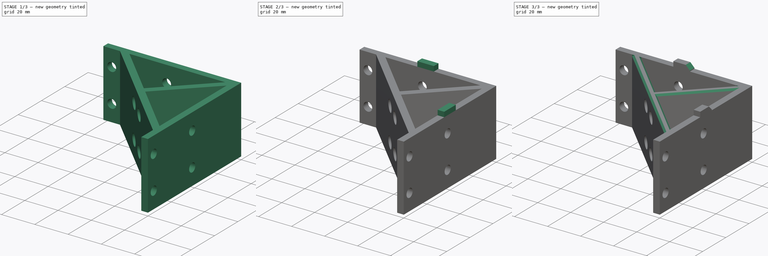
[diagram: build sequence overview — one tinted view per stage of 3, left to right]
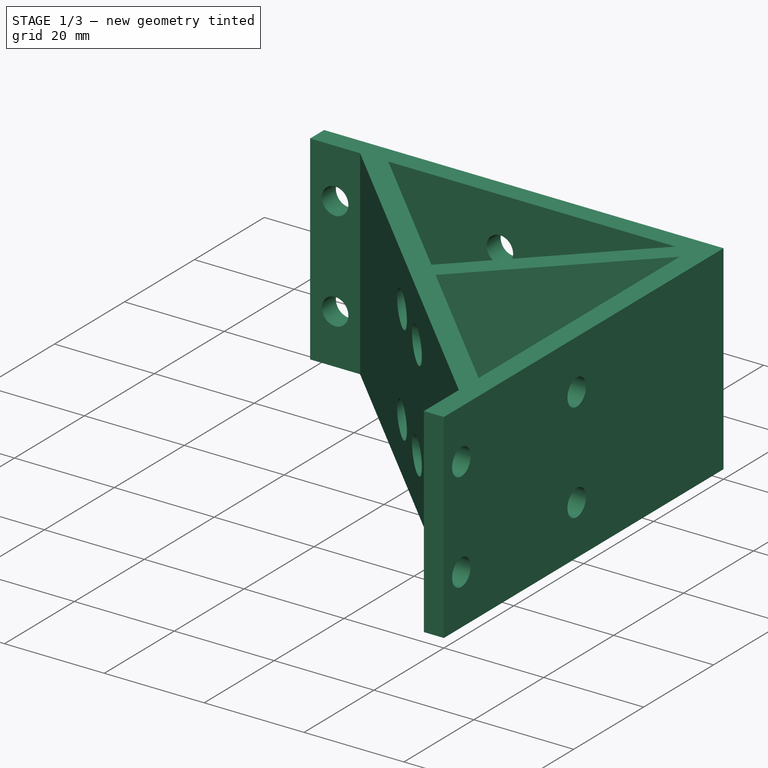
[diagram: stage 1 of 3 — iso view after this stage's code; geometry added in this stage tinted green]
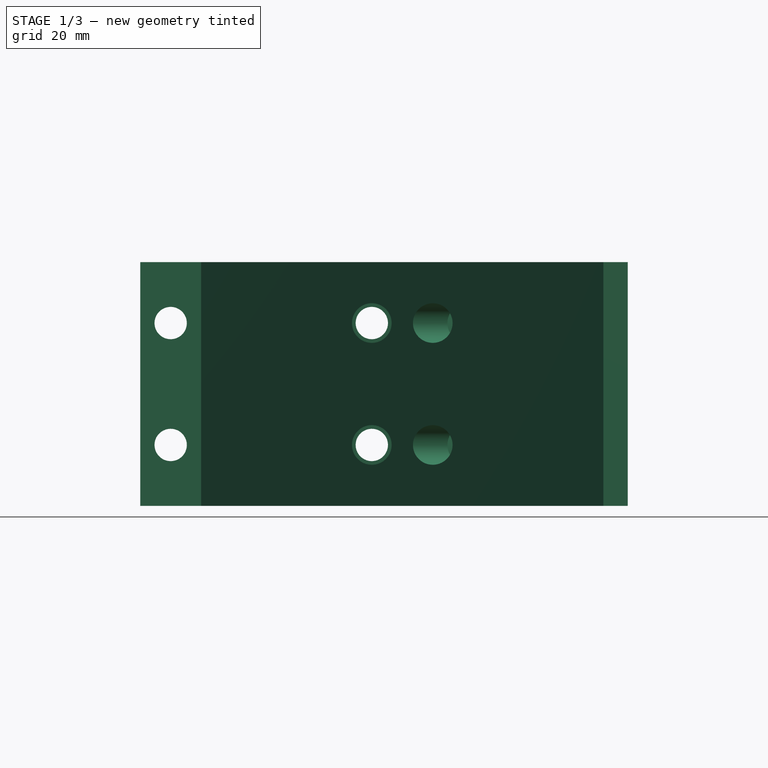
[diagram: stage 1 of 3 — front view after this stage's code; geometry added in this stage tinted green]
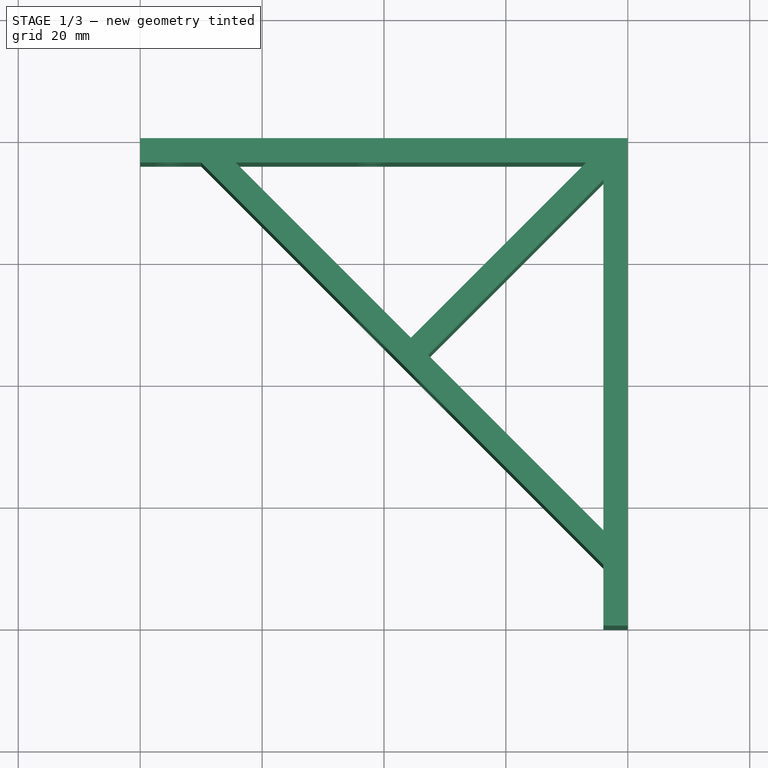
[diagram: stage 1 of 3 — top view after this stage's code; geometry added in this stage tinted green]
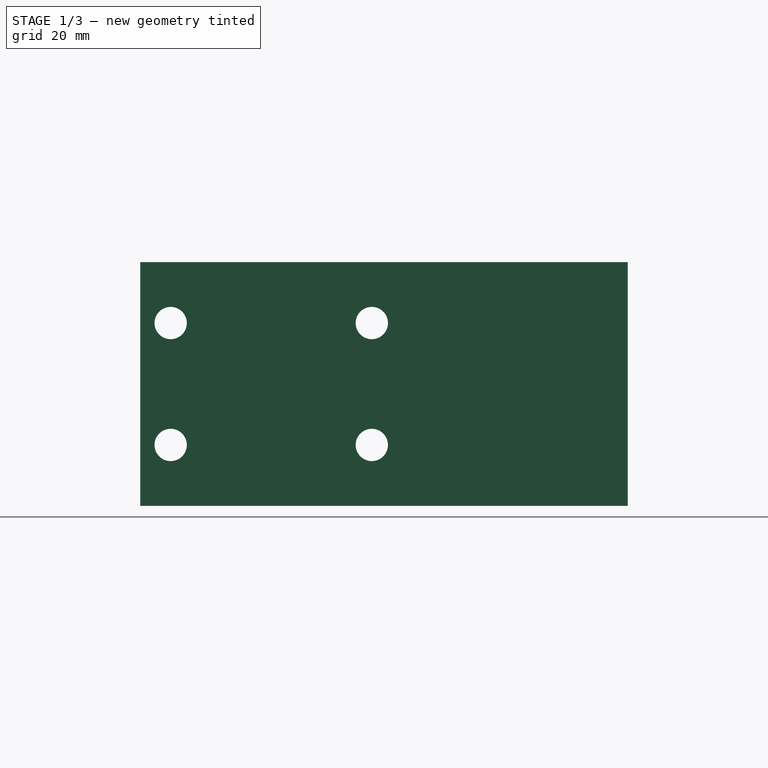
[diagram: stage 1 of 3 — right view after this stage's code; geometry added in this stage tinted green]
FCSTD DOCUMENT  (FreeCAD 0.19R24291 (Git))
Label: FDM-9001_squaring-bracket
License: All rights reserved
LicenseURL: http://en.wikipedia.org/wiki/All_rights_reserved
objects: Sketcher::SketchObject×5, PartDesign::Plane×4, PartDesign::Pad×3, PartDesign::Hole×2, PartDesign::Chamfer×2, Part::Part2DObjectPython×1, PartDesign::Pocket×1, PartDesign::Body×1
note: 27 computed .brp shape members not serialized (recipe doc carries the construction recipe); baked Part::Feature solids carry a one-line shape summary decoded from their .brp

FEATURE [Sketcher::SketchObject] Sketch  label="BaseShape"
  FullyConstrained = true
  MapMode = 5
  Support = -> [XY_Plane]
  sketch-geometry (16):
    g0: LineSegment StartX=-80 StartY=0 StartZ=0 EndX=-70 EndY=0 EndZ=0
    g1: LineSegment StartX=-4 StartY=-70 StartZ=0 EndX=-70 EndY=-4 EndZ=0
    g2: LineSegment StartX=-70 StartY=-4 StartZ=0 EndX=-80 EndY=-4 EndZ=0
    g3: LineSegment StartX=-80 StartY=0 StartZ=0 EndX=-80 EndY=-4 EndZ=0
    g4: LineSegment StartX=-4 StartY=-70 StartZ=0 EndX=-4 EndY=-80 EndZ=0
    g5: LineSegment StartX=-4 StartY=-80 StartZ=0 EndX=0 EndY=-80 EndZ=0
    g6: LineSegment StartX=0 StartY=-80 StartZ=0 EndX=0 EndY=-70 EndZ=0
    g7: LineSegment StartX=-70 StartY=0 StartZ=0 EndX=0 EndY=0 EndZ=0
    g8: LineSegment StartX=0 StartY=-70 StartZ=0 EndX=0 EndY=0 EndZ=0
    g9: LineSegment StartX=-64.3431 StartY=-4 StartZ=0 EndX=-6.82843 EndY=-4 EndZ=0
    g10: LineSegment StartX=-6.82843 StartY=-4 StartZ=0 EndX=-35.5858 EndY=-32.7574 EndZ=0
    g11: LineSegment StartX=-35.5858 StartY=-32.7574 StartZ=0 EndX=-64.3431 EndY=-4 EndZ=0
    g12: LineSegment StartX=-4 StartY=-6.82843 StartZ=0 EndX=-32.7574 EndY=-35.5858 EndZ=0
    g13: LineSegment StartX=-32.7574 StartY=-35.5858 StartZ=0 EndX=-4 EndY=-64.3431 EndZ=0
    g14: LineSegment StartX=-4 StartY=-64.3431 StartZ=0 EndX=-4 EndY=-6.82843 EndZ=0
    g15: LineSegment StartX=0 StartY=0 StartZ=0 EndX=-37 EndY=-37 EndZ=0
  constraints (46):
    c: Horizontal(g0)
    c: Coincident(g2,g1)
    c: Horizontal(g2)
    c: Coincident(g3,g0)
    c: Coincident(g3,g2)
    c: Vertical(g3)
    c: Vertical(g1,g0)
    c: DistanceX(g2,g2) = 10
    c: Coincident(g4,g1)
    c: Vertical(g4)
    c: Coincident(g5,g4)
    c: Coincident(g6,g5)
    c: Vertical(g6)
    c: Horizontal(g5)
    c: DistanceX(g5,g5) = 4
    c: Equal(g5,g3)
    c: Equal(g4,g2)
    c: Angle(g1,g4) = 2.35619
    c: Coincident(g7,g0)
    c: Horizontal(g7)
    c: Coincident(g8,g6)
    c: Vertical(g8)
    c: Coincident(g8,g7)
    c: DistanceX(g0,g7) = 80
    c: Horizontal(g9)
    c: Coincident(g10,g9)
    c: Coincident(g11,g10)
    c: Coincident(g11,g9)
    c: Coincident(g13,g12)
    c: Coincident(g14,g13)
    c: Coincident(g14,g12)
    c: Vertical(g14)
    c: Parallel(g1,g13)
    c: Parallel(g1,g11)
    c: Perpendicular(g13,g12)
    c: Perpendicular(g10,g11)
    c: Distance(g9,g12) = 4
    c: Distance(g10,g1) = 4
    c: Distance(g12,g1) = 4
    c: Horizontal(g1,g6)
    c: Horizontal(g1,g9)
    c: Equal(g14,g9)
    c: Coincident(g7,g-1)
    c: Coincident(g15,g7)
    c: PointOnObject(g15,g1)
    c: Symmetric(g10,g12,g15)
FEATURE [PartDesign::Pad] Pad
  Direction = (1,1,1)
  Length = 40
  Length2 = 100
  Profile = -> Sketch
  Type = 0
FEATURE [PartDesign::Plane] DatumPlane
  AttachmentOffset = pos=(0,0,40) rot=(0,0,1;0rad)
  Length = 121.9
  MapMode = 5
  Placement = pos=(0,-44,8.9e-15) rot=(1,0,0;1.5708rad)
  ResizeMode = 0
  Support = -> [Pad]
  Width = 84.8997
FEATURE [Sketcher::SketchObject] Sketch001  label="M5Holes1"
  FullyConstrained = true
  MapMode = 5
  Placement = pos=(0,-44,8.9e-15) rot=(1,0,0;1.5708rad)
  Support = -> [DatumPlane]
  sketch-geometry (4):
    g0: Circle CenterX=-75 CenterY=10 CenterZ=0 NormalX=0 NormalY=0 NormalZ=1 AngleXU=0 Radius=3
    g1: Circle CenterX=-42 CenterY=10 CenterZ=0 NormalX=0 NormalY=0 NormalZ=1 AngleXU=0 Radius=3
    g2: Circle CenterX=-75 CenterY=30 CenterZ=0 NormalX=0 NormalY=0 NormalZ=1 AngleXU=0 Radius=3
    g3: Circle CenterX=-42 CenterY=30 CenterZ=0 NormalX=0 NormalY=0 NormalZ=1 AngleXU=0 Radius=3
  constraints (12):
    c: Horizontal(g0,g1)
    c: Radius(g1) = 3
    c: Equal(g0,g1)
    c: DistanceY(g-1,g1) = 10
    c: DistanceX(g1,g-1) = 42
    c: Vertical(g2,g0)
    c: Vertical(g3,g1)
    c: Horizontal(g2,g3)
    c: DistanceY(g-1,g3) = 30
    c: Equal(g3,g2)
    c: Equal(g2,g1)
    c: DistanceX(g0,g-1) = 75
FEATURE [PartDesign::Hole] Hole
  BaseFeature = -> Pad
  Depth = 45
  DepthType = 1
  Diameter = 5.3
  DrillForDepth = false
  DrillPoint = 1
  DrillPointAngle = 118
  HoleCutCountersinkAngle = 90
  HoleCutCustomValues = false
  HoleCutDepth = 30
  HoleCutDiameter = 6.5
  HoleCutType = 1
  ModelActualThread = false
  Profile = -> Sketch001
  Tapered = false
  TaperedAngle = 90
  ThreadAngle = 0
  ThreadClass = 0
  ThreadCutOffInner = 0
  ThreadCutOffOuter = 0
  ThreadDirection = 0
  ThreadFit = 1
  ThreadPitch = 0
  ThreadSize = 13
  ThreadType = 1
  Threaded = false
FEATURE [PartDesign::Plane] DatumPlane001
  AttachmentOffset = pos=(0,0,40) rot=(0,0,1;0rad)
  Length = 121.9
  MapMode = 5
  Placement = pos=(-44,0,0) rot=(0.57735,-0.57735,-0.57735;2.0944rad)
  ResizeMode = 0
  Support = -> [Hole]
  Width = 84.8997
FEATURE [Sketcher::SketchObject] Sketch002  label="M5Holes2"
  FullyConstrained = true
  MapMode = 5
  Placement = pos=(-44,0,0) rot=(0.57735,-0.57735,-0.57735;2.0944rad)
  Support = -> [DatumPlane001]
  sketch-geometry (4):
    g0: Circle CenterX=42 CenterY=30 CenterZ=0 NormalX=0 NormalY=0 NormalZ=1 AngleXU=0 Radius=3
    g1: Circle CenterX=75 CenterY=30 CenterZ=0 NormalX=0 NormalY=0 NormalZ=1 AngleXU=0 Radius=3
    g2: Circle CenterX=42 CenterY=10 CenterZ=0 NormalX=0 NormalY=0 NormalZ=1 AngleXU=0 Radius=3
    g3: Circle CenterX=75 CenterY=10 CenterZ=0 NormalX=0 NormalY=0 NormalZ=1 AngleXU=0 Radius=3
  constraints (12):
    c: Equal(g0,g1)
    c: Radius(g1) = 3
    c: Horizontal(g0,g1)
    c: DistanceY(g-1,g0) = 30
    c: DistanceX(g-1,g0) = 42
    c: Vertical(g2,g0)
    c: Vertical(g1,g3)
    c: Horizontal(g2,g3)
    c: Equal(g2,g3)
    c: Equal(g3,g0)
    c: DistanceY(g-1,g2) = 10
    c: DistanceX(g-1,g1) = 75
FEATURE [PartDesign::Hole] Hole001
  BaseFeature = -> Hole
  Depth = 25
  DepthType = 1
  Diameter = 5.3
  DrillForDepth = false
  DrillPoint = 1
  DrillPointAngle = 118
  HoleCutCountersinkAngle = 90
  HoleCutCustomValues = false
  HoleCutDepth = 30
  HoleCutDiameter = 6.5
  HoleCutType = 1
  ModelActualThread = false
  Profile = -> Sketch002
  Tapered = false
  TaperedAngle = 90
  ThreadAngle = 0
  ThreadClass = 0
  ThreadCutOffInner = 0
  ThreadCutOffOuter = 0
  ThreadDirection = 0
  ThreadFit = 1
  ThreadPitch = 0
  ThreadSize = 13
  ThreadType = 1
  Threaded = false
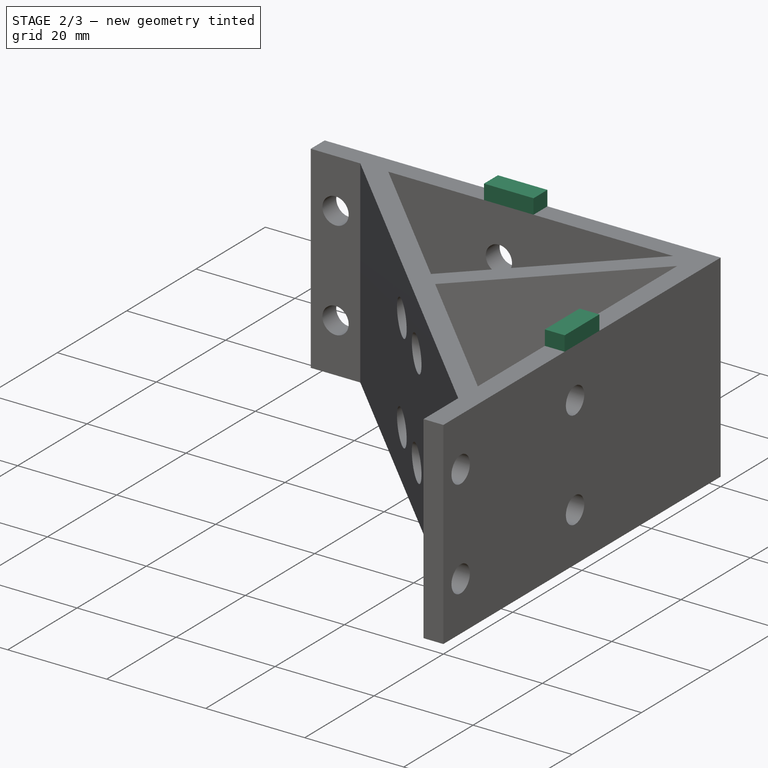
[diagram: stage 2 of 3 — iso view after this stage's code; geometry added in this stage tinted green]
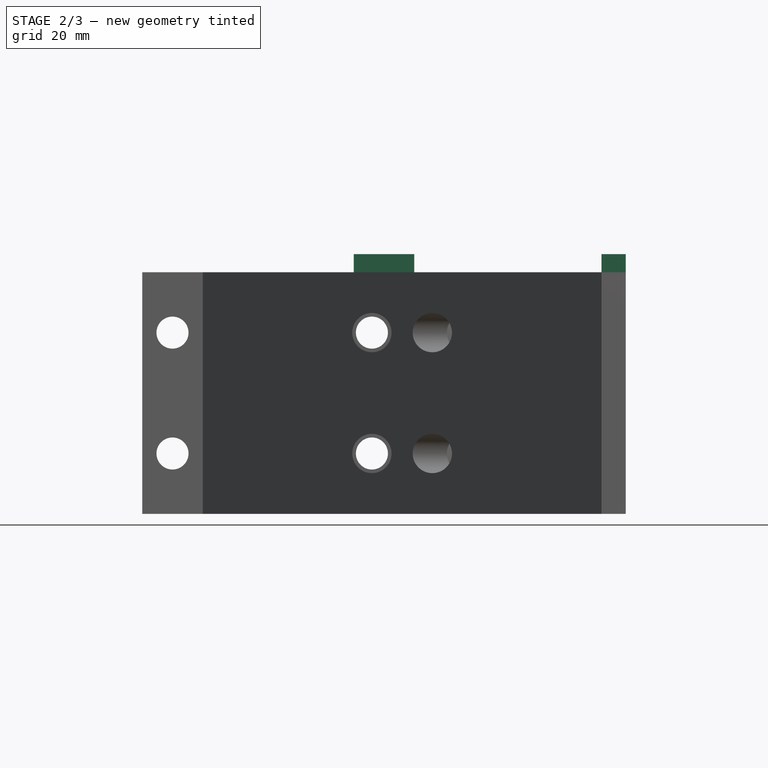
[diagram: stage 2 of 3 — front view after this stage's code; geometry added in this stage tinted green]
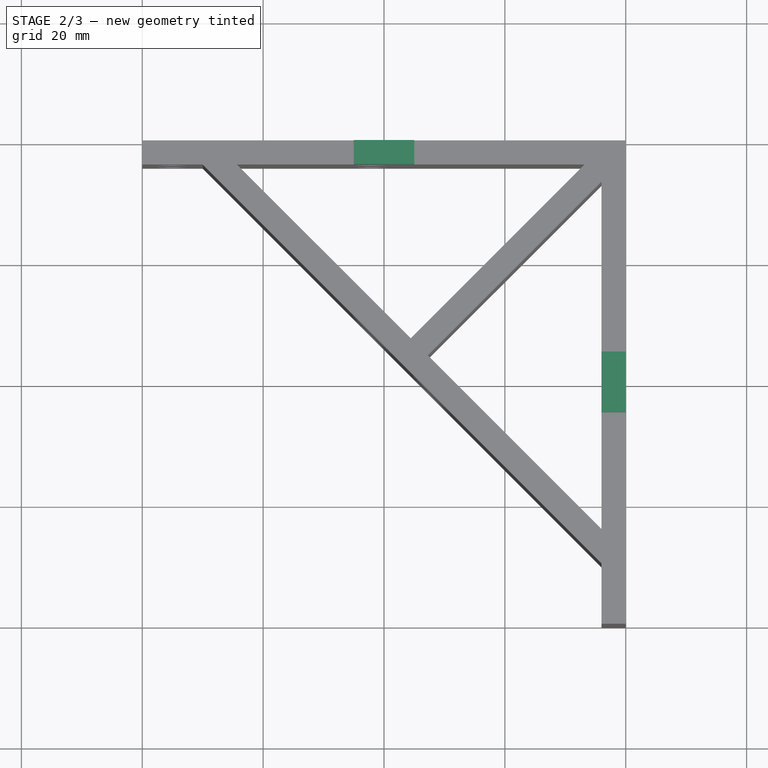
[diagram: stage 2 of 3 — top view after this stage's code; geometry added in this stage tinted green]
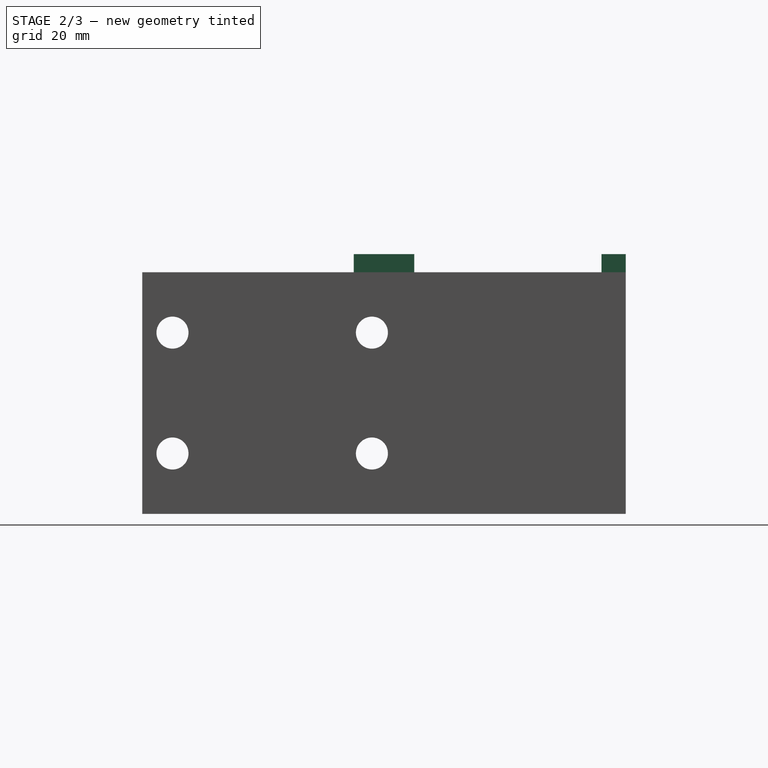
[diagram: stage 2 of 3 — right view after this stage's code; geometry added in this stage tinted green]
FEATURE [Sketcher::SketchObject] Sketch003  label="Notch1"
  FullyConstrained = true
  MapMode = 5
  Placement = pos=(0,0,0) rot=(0.57735,0.57735,0.57735;2.0944rad)
  Support = -> [Hole001]
  sketch-geometry (4):
    g0: LineSegment StartX=-45 StartY=40 StartZ=0 EndX=-35 EndY=40 EndZ=0
    g1: LineSegment StartX=-35 StartY=40 StartZ=0 EndX=-35 EndY=43 EndZ=0
    g2: LineSegment StartX=-35 StartY=43 StartZ=0 EndX=-45 EndY=43 EndZ=0
    g3: LineSegment StartX=-45 StartY=43 StartZ=0 EndX=-45 EndY=40 EndZ=0
  constraints (12):
    c: Coincident(g0,g1)
    c: Coincident(g1,g2)
    c: Coincident(g2,g3)
    c: Coincident(g3,g0)
    c: Horizontal(g0)
    c: Horizontal(g2)
    c: Vertical(g1)
    c: Vertical(g3)
    c: DistanceX(g0,g0) = 10
    c: DistanceY(g1,g1) = 3
    c: DistanceX(g0,g-1) = 45
    c: DistanceY(g-1,g0) = 40
FEATURE [PartDesign::Pad] Pad001
  BaseFeature = -> Hole001
  Direction = (1,1,1)
  Length = 4
  Length2 = 100
  Profile = -> Sketch003
  Reversed = true
  Type = 0
FEATURE [Sketcher::SketchObject] Sketch004  label="Notch2"
  FullyConstrained = true
  MapMode = 5
  Placement = pos=(0,0,0) rot=(0,0.707107,0.707107;3.14159rad)
  Support = -> [Pad001]
  sketch-geometry (4):
    g0: LineSegment StartX=35 StartY=40 StartZ=0 EndX=45 EndY=40 EndZ=0
    g1: LineSegment StartX=45 StartY=40 StartZ=0 EndX=45 EndY=43 EndZ=0
    g2: LineSegment StartX=45 StartY=43 StartZ=0 EndX=35 EndY=43 EndZ=0
    g3: LineSegment StartX=35 StartY=43 StartZ=0 EndX=35 EndY=40 EndZ=0
  constraints (12):
    c: Coincident(g0,g1)
    c: Coincident(g1,g2)
    c: Coincident(g2,g3)
    c: Coincident(g3,g0)
    c: Horizontal(g0)
    c: Horizontal(g2)
    c: Vertical(g1)
    c: Vertical(g3)
    c: DistanceX(g2,g2) = 10
    c: DistanceY(g1,g1) = 3
    c: DistanceX(g-1,g0) = 45
    c: DistanceY(g-1,g0) = 40
FEATURE [PartDesign::Pad] Pad002
  BaseFeature = -> Pad001
  Direction = (1,1,1)
  Length = 4
  Length2 = 100
  Profile = -> Sketch004
  Reversed = true
  Type = 0
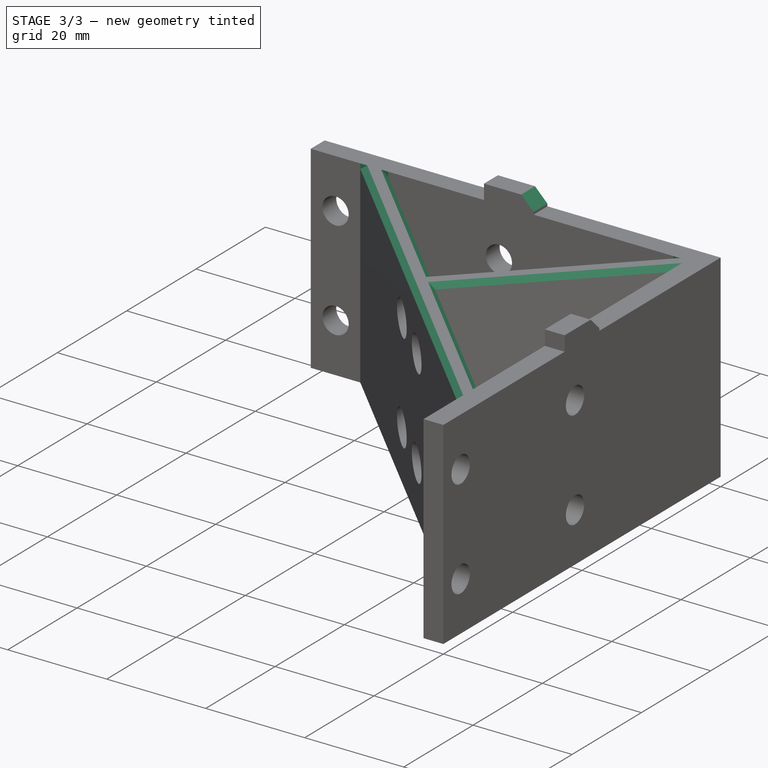
[diagram: stage 3 of 3 — iso view after this stage's code; geometry added in this stage tinted green]
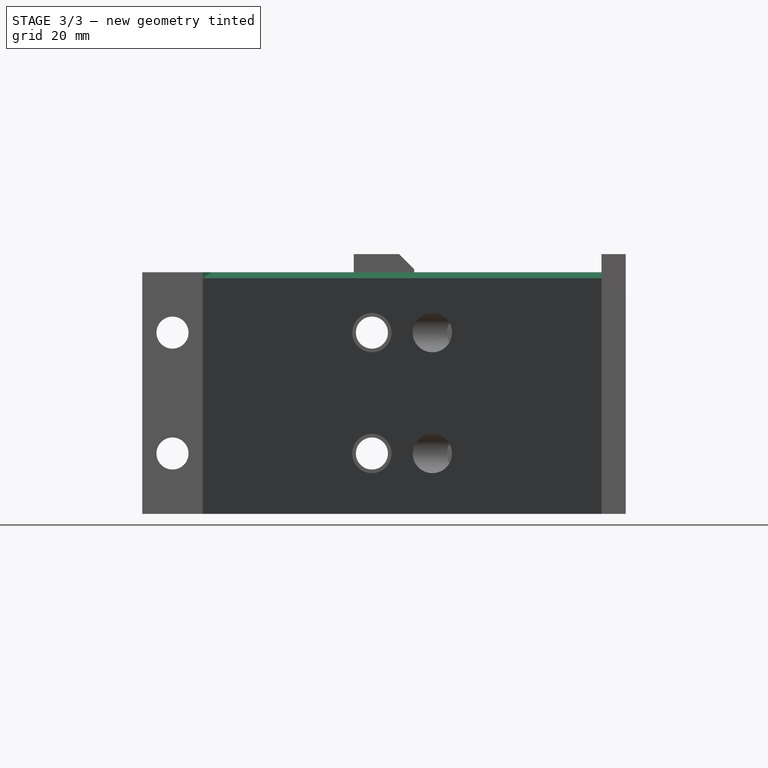
[diagram: stage 3 of 3 — front view after this stage's code; geometry added in this stage tinted green]
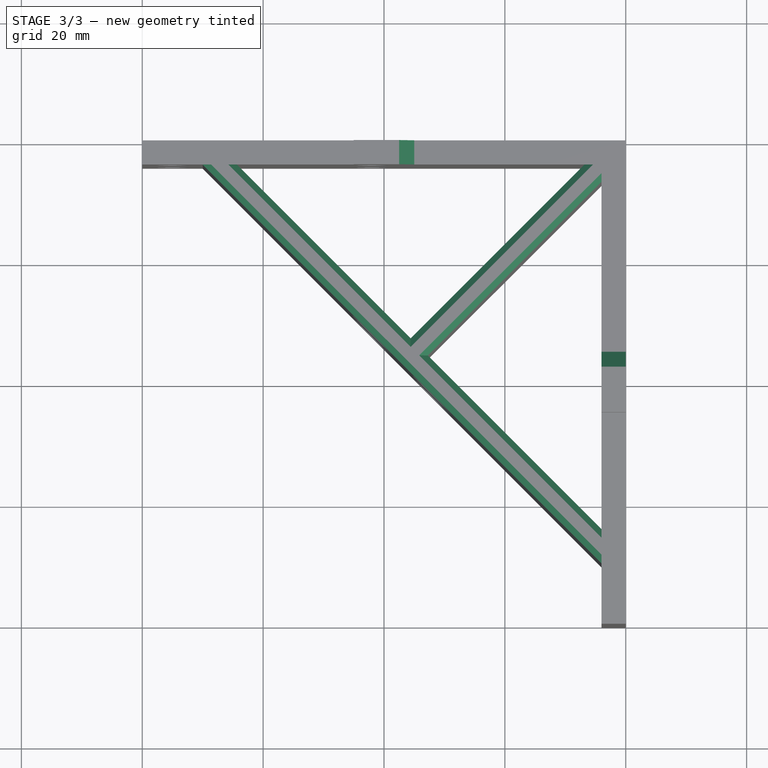
[diagram: stage 3 of 3 — top view after this stage's code; geometry added in this stage tinted green]
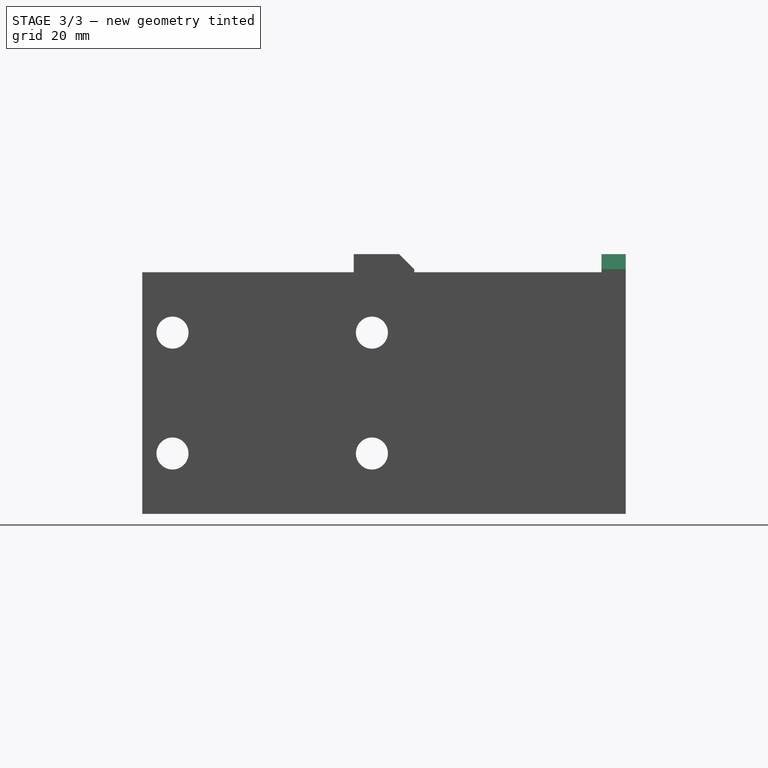
[diagram: stage 3 of 3 — right view after this stage's code; geometry added in this stage tinted green]
FEATURE [PartDesign::Plane] DatumPlane003  label="PartNumber"
  Length = 121.9
  MapMode = 3
  Placement = pos=(0,0,0) rot=(0,0.707107,0.707107;3.14159rad)
  ResizeMode = 0
  Width = 84.8997
FEATURE [Part::Part2DObjectPython] ShapeString  label="PN"  # Draft 2D object (typed FeaturePython)
  AttachmentOffset = pos=(3,2,0) rot=(0,0,1;0rad)
  FontFile = ../../lib/fonts/RobotoMono-VariableFont_weight.ttf
  MapMode = 5
  Placement = pos=(-3,4e-16,2) rot=(0,0.707107,0.707107;3.14159rad)
  Size = 5
  String = FDM-9001-01
  Support = -> [DatumPlane003]
  Tracking = 0
FEATURE [PartDesign::Pocket] Pocket
  BaseFeature = -> Pad002
  Length = 0.6
  Length2 = 100
  Profile = -> ShapeString
  Type = 0
FEATURE [PartDesign::Chamfer] Chamfer001
  Angle = 45
  Base = -> Pocket [Edge240,Edge237]
  BaseFeature = -> Pocket
  ChamferType = 0
  FlipDirection = false
  Size = 2.5
  Size2 = 1
  SupportTransform = false
FEATURE [PartDesign::Chamfer] Chamfer
  Angle = 45
  Base = -> Chamfer001 [Edge18,Edge24,Edge25,Edge17,Edge32]
  BaseFeature = -> Chamfer001
  ChamferType = 0
  FlipDirection = false
  Size = 1
  Size2 = 1
  SupportTransform = false
FEATURE [PartDesign::Plane] DatumPlane002  label="PrintPlane"
  Length = 126
  MapMode = 5
  Placement = pos=(0,0,0) rot=(1,0,0;3.14159rad)
  ResizeMode = 0
  Support = -> [Chamfer]
  Width = 126
FEATURE [PartDesign::Body] Body
  Group = -> [Sketch,Pad,DatumPlane,Sketch001,Hole,DatumPlane001,Sketch002,Hole001,Sketch003,Pad001,Sketch004,Pad002,DatumPlane003,ShapeString,Pocket,Chamfer001,Chamfer,DatumPlane002]
  Origin = -> Origin
  Tip = -> Chamfer
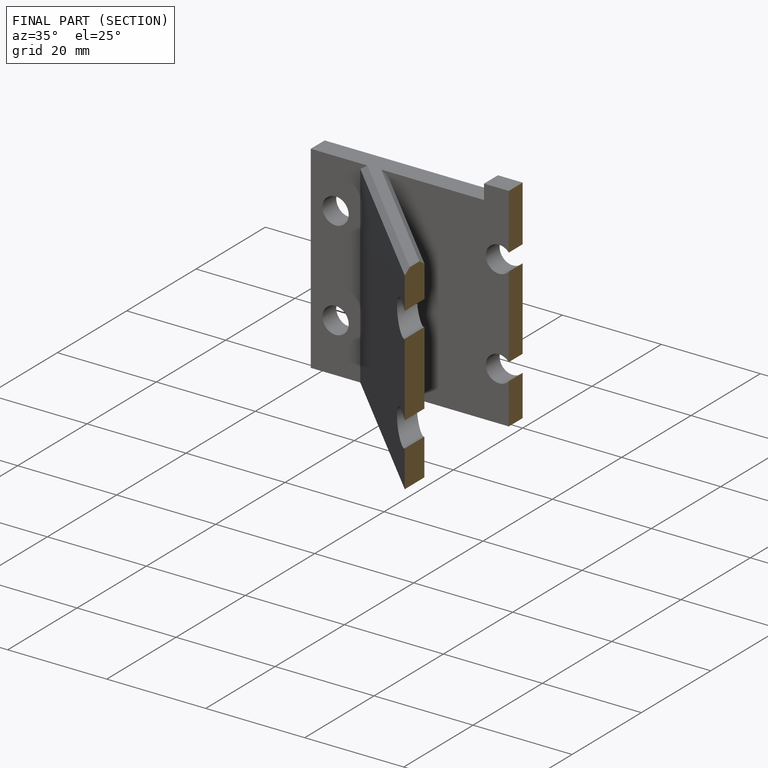
[diagram: finished part — half-section view (interior)]
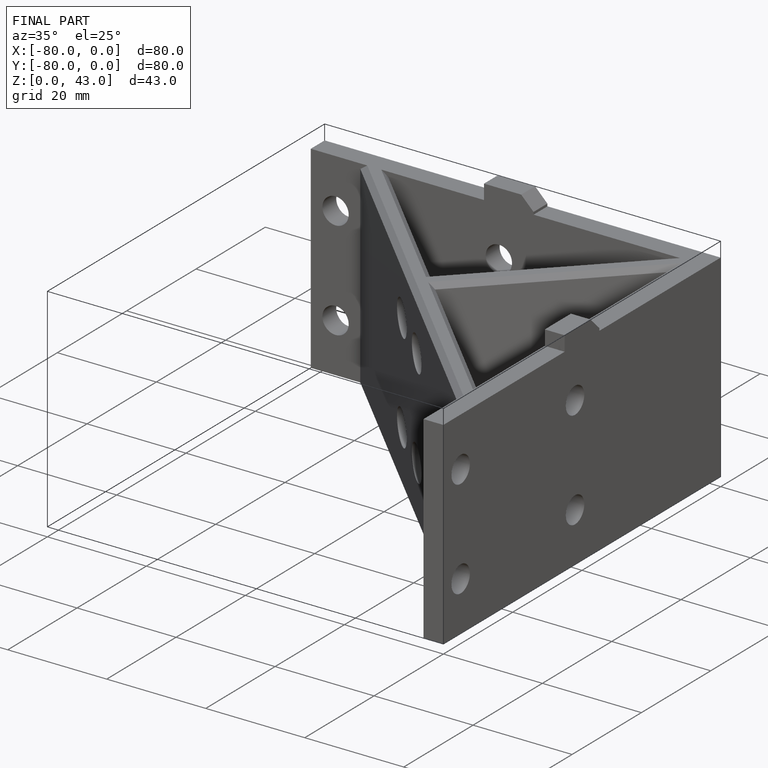
[diagram: finished part — iso view with bounding-box wireframe]
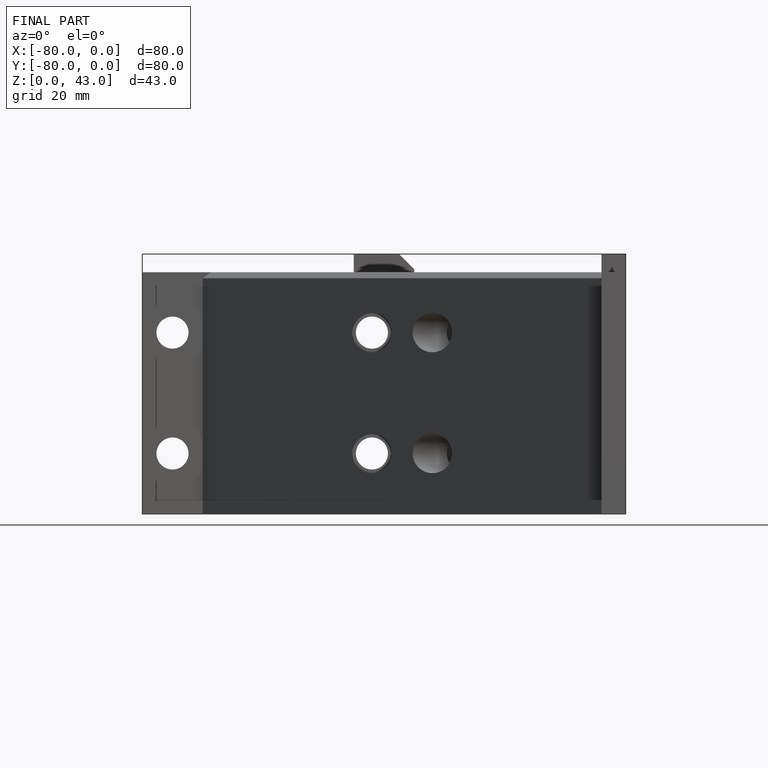
[diagram: finished part — front view with bounding-box wireframe]
